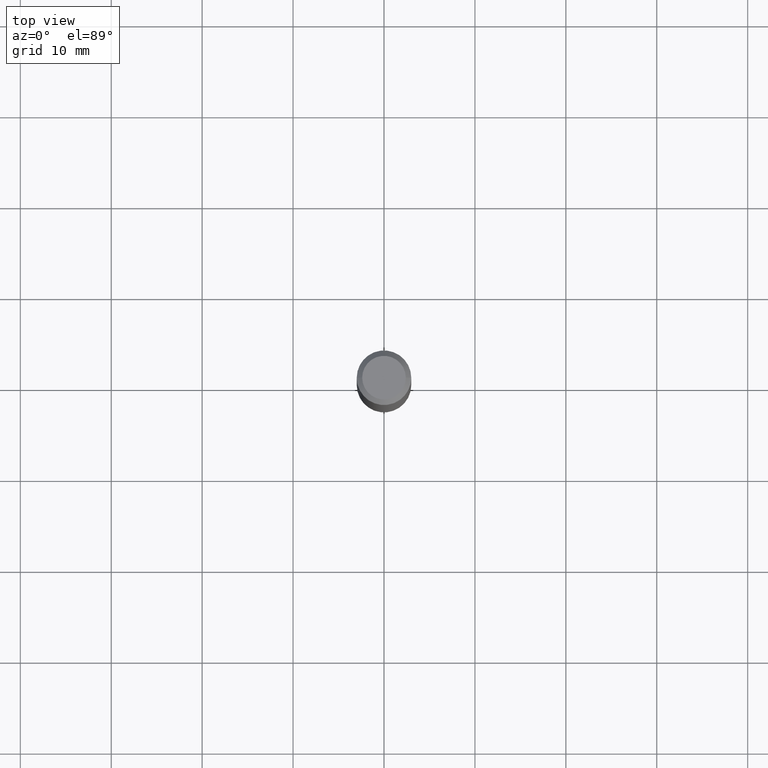
[diagram: clean part render]
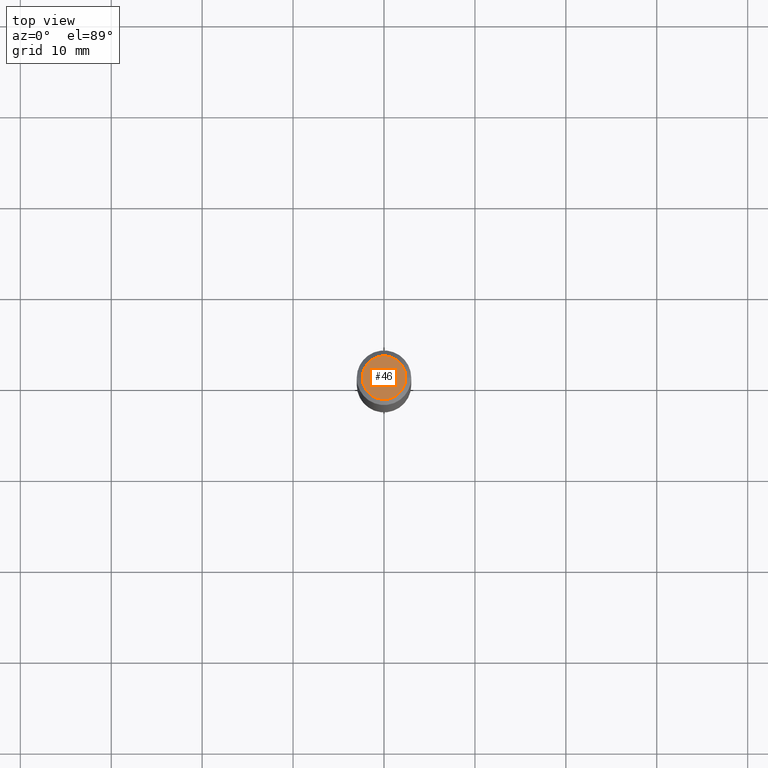
[diagram: same view with one face highlighted and labeled with its STEP entity id]
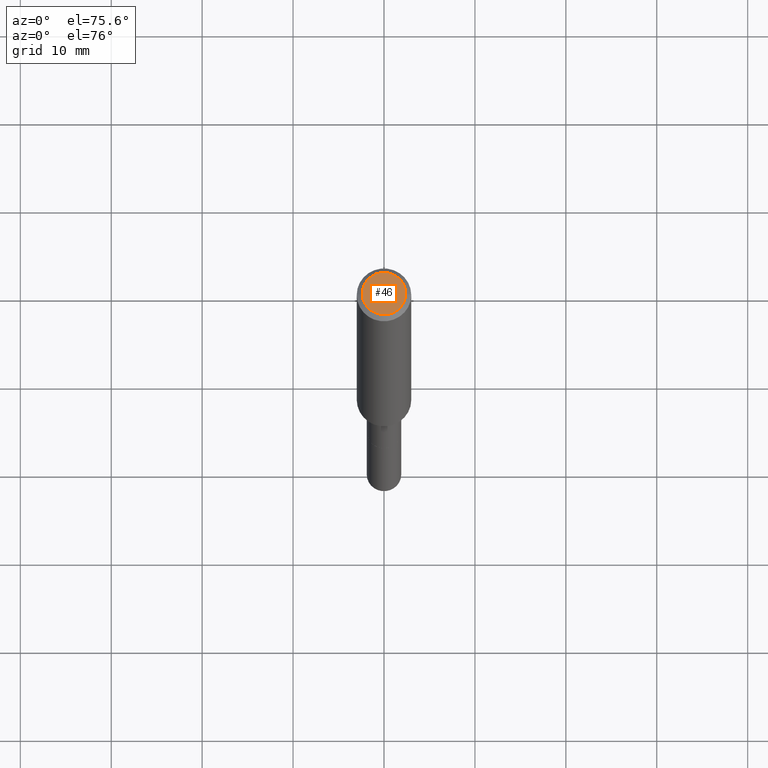
[diagram: same view with one face highlighted and labeled with its STEP entity id]
A machine part, top view. The second image highlights one B-rep face of the part: STEP entity #46.
A second angle (auxiliary view) of the same face is appended — the face is thin or edge-on in the first view.
In plain terms, the highlighted planar face has unit normal (0, -0, -1).
Its self-contained STEP definition (entity closure, byte-faithful):
#46 = ADVANCED_FACE ( 'NONE', ( #48 ), #211, .F. ) ;
#48 = FACE_OUTER_BOUND ( 'NONE', #286, .T. ) ;
#83 = VERTEX_POINT ( 'NONE', #393 ) ;
#85 = AXIS2_PLACEMENT_3D ( 'NONE', #141, #293, #331 ) ;
#127 = CARTESIAN_POINT ( 'NONE',  ( 7.545787641473140628E-46, -1.077338491108201769E-31, -3.085620075131671975E-17 ) ) ;
#138 = EDGE_CURVE ( 'NONE', #329, #83, #334, .T. ) ;
#141 = CARTESIAN_POINT ( 'NONE',  ( 7.545787641473140628E-46, -1.077338491108201769E-31, -3.085620075131671975E-17 ) ) ;
#156 = AXIS2_PLACEMENT_3D ( 'NONE', #361, #401, #325 ) ;
#211 = PLANE ( 'NONE',  #156 ) ;
#239 = DIRECTION ( 'NONE',  ( -2.445468806185136597E-29, 3.491481338843145583E-15, 1.000000000000000000 ) ) ;
#244 = CIRCLE ( 'NONE', #488, 0.09447999999999998066 ) ;
#286 = EDGE_LOOP ( 'NONE', ( #505, #504 ) ) ;
#293 = DIRECTION ( 'NONE',  ( -2.445468806185136597E-29, 3.491481338843145583E-15, 1.000000000000000000 ) ) ;
#325 = DIRECTION ( 'NONE',  ( -1.000000000000000000, 6.982962677686265922E-15, -4.876176775795935793E-29 ) ) ;
#329 = VERTEX_POINT ( 'NONE', #426 ) ;
#331 = DIRECTION ( 'NONE',  ( 1.000000000000000000, -6.982962677686267499E-15, 4.875432709231658792E-29 ) ) ;
#334 = CIRCLE ( 'NONE', #85, 0.09447999999999998066 ) ;
#361 = CARTESIAN_POINT ( 'NONE',  ( 3.772893820736570314E-46, -5.386692455541008845E-32, -1.542810037565835988E-17 ) ) ;
#393 = CARTESIAN_POINT ( 'NONE',  ( 0.09447999999999998066, -7.704367267948738690E-16, -3.085620075131172158E-17 ) ) ;
#401 = DIRECTION ( 'NONE',  ( 2.438088387897960049E-29, -3.491481338843145188E-15, -1.000000000000000000 ) ) ;
#426 = CARTESIAN_POINT ( 'NONE',  ( -0.09447999999999998066, 7.009847083995354710E-16, -3.085620075132147757E-17 ) ) ;
#472 = EDGE_CURVE ( 'NONE', #83, #329, #244, .T. ) ;
#480 = DIRECTION ( 'NONE',  ( 1.000000000000000000, -6.982962677686267499E-15, 4.875432709231658792E-29 ) ) ;
#488 = AXIS2_PLACEMENT_3D ( 'NONE', #127, #239, #480 ) ;
#504 = ORIENTED_EDGE ( 'NONE', *, *, #472, .T. ) ;
#505 = ORIENTED_EDGE ( 'NONE', *, *, #138, .T. ) ;